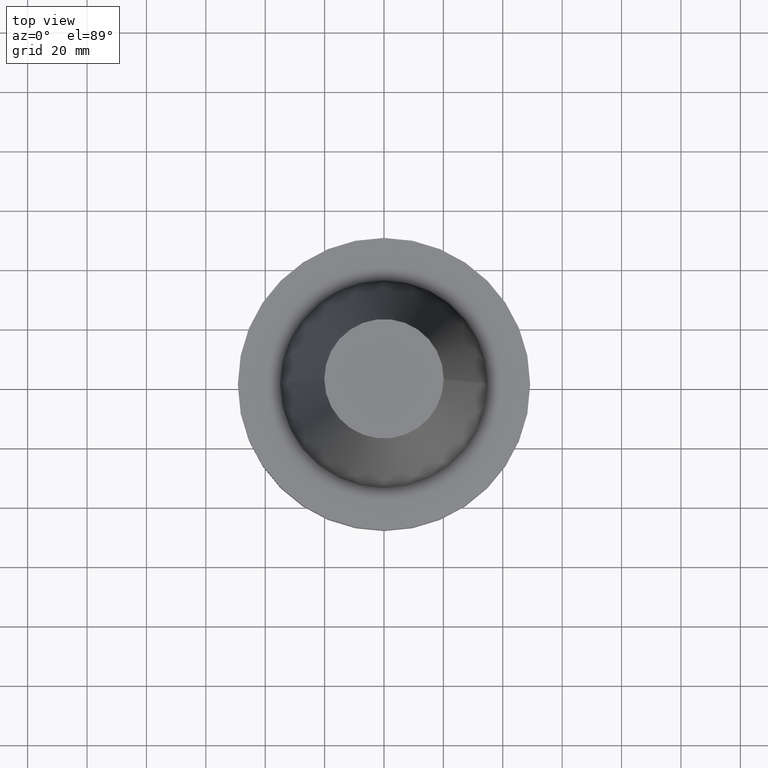
[diagram: clean part render]
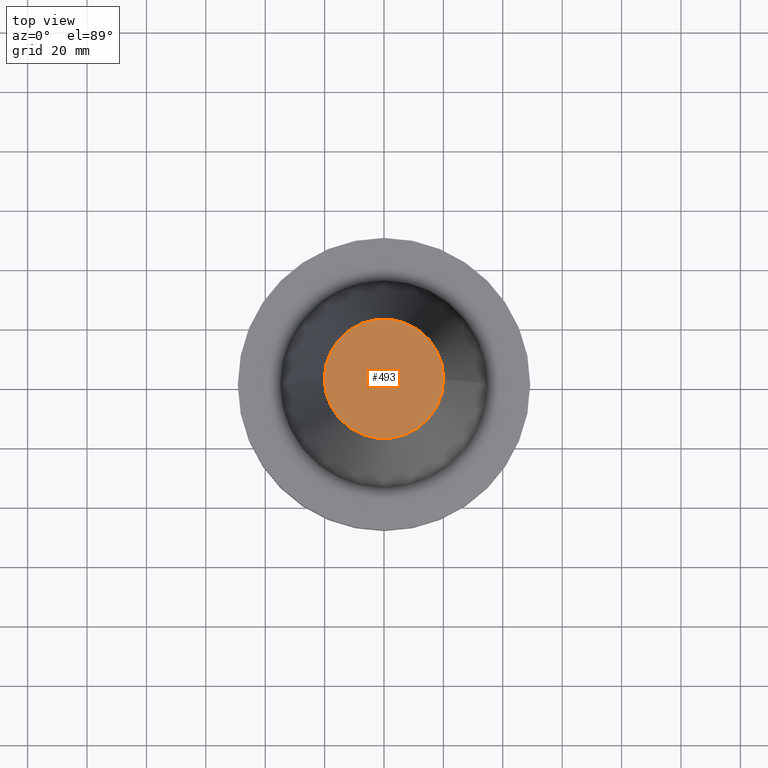
[diagram: same view with one face highlighted and labeled with its STEP entity id]
A machine part, top view. The second image highlights one B-rep face of the part: STEP entity #493.
In plain terms, the highlighted planar face has unit normal (0, 0, -1).
Its self-contained STEP definition (entity closure, byte-faithful):
#84 = CIRCLE ( 'NONE', #568, 20.10819343178871321 ) ;
#100 = VERTEX_POINT ( 'NONE', #741 ) ;
#268 = FACE_OUTER_BOUND ( 'NONE', #581, .T. ) ;
#270 = VERTEX_POINT ( 'NONE', #829 ) ;
#405 = AXIS2_PLACEMENT_3D ( 'NONE', #845, #521, #446 ) ;
#444 = CIRCLE ( 'NONE', #405, 20.10819343178871321 ) ;
#446 = DIRECTION ( 'NONE',  ( 1.000000000000000000, 0.000000000000000000, 0.000000000000000000 ) ) ;
#469 = DIRECTION ( 'NONE',  ( -0.000000000000000000, -0.000000000000000000, 1.000000000000000000 ) ) ;
#472 = DIRECTION ( 'NONE',  ( 0.000000000000000000, 0.000000000000000000, -1.000000000000000000 ) ) ;
#478 = CARTESIAN_POINT ( 'NONE',  ( 0.000000000000000000, 20.10819343178871321, 101.5999999999999943 ) ) ;
#493 = ADVANCED_FACE ( 'NONE', ( #268 ), #597, .F. ) ;
#499 = ORIENTED_EDGE ( 'NONE', *, *, #641, .T. ) ;
#521 = DIRECTION ( 'NONE',  ( -0.000000000000000000, -0.000000000000000000, 1.000000000000000000 ) ) ;
#537 = EDGE_CURVE ( 'NONE', #270, #100, #84, .T. ) ;
#568 = AXIS2_PLACEMENT_3D ( 'NONE', #790, #469, #729 ) ;
#581 = EDGE_LOOP ( 'NONE', ( #685, #499 ) ) ;
#597 = PLANE ( 'NONE',  #681 ) ;
#641 = EDGE_CURVE ( 'NONE', #100, #270, #444, .T. ) ;
#671 = DIRECTION ( 'NONE',  ( -1.000000000000000000, 0.000000000000000000, -0.000000000000000000 ) ) ;
#681 = AXIS2_PLACEMENT_3D ( 'NONE', #478, #472, #671 ) ;
#685 = ORIENTED_EDGE ( 'NONE', *, *, #537, .T. ) ;
#729 = DIRECTION ( 'NONE',  ( 1.000000000000000000, 0.000000000000000000, 0.000000000000000000 ) ) ;
#741 = CARTESIAN_POINT ( 'NONE',  ( 20.10819343178871321, 3.369811209154858606E-15, 101.5999999999999801 ) ) ;
#790 = CARTESIAN_POINT ( 'NONE',  ( 0.000000000000000000, 0.000000000000000000, 101.5999999999999801 ) ) ;
#829 = CARTESIAN_POINT ( 'NONE',  ( -20.10819343178871321, 0.000000000000000000, 101.5999999999999801 ) ) ;
#845 = CARTESIAN_POINT ( 'NONE',  ( 0.000000000000000000, 0.000000000000000000, 101.5999999999999801 ) ) ;